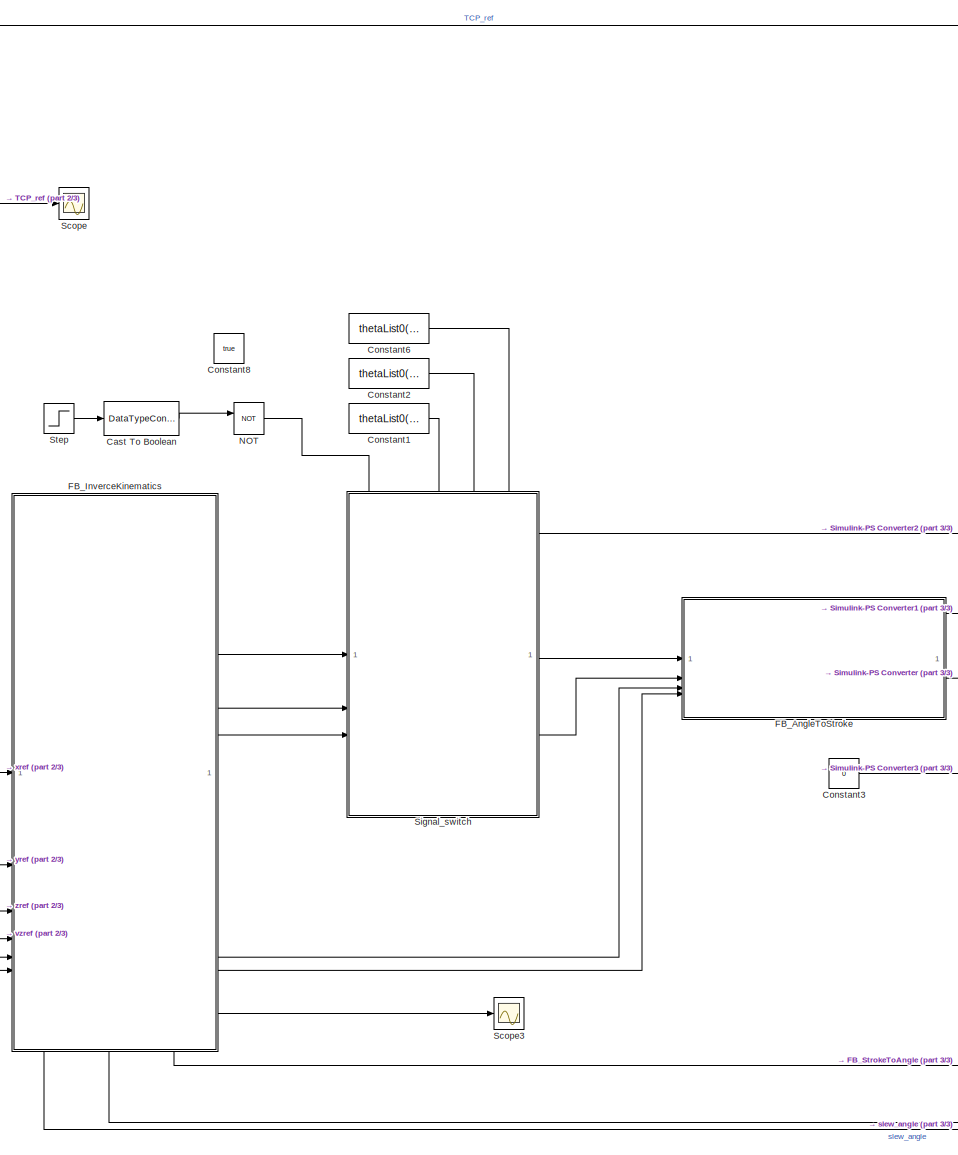
[diagram: root canvas - part 1/3, center side, full height]
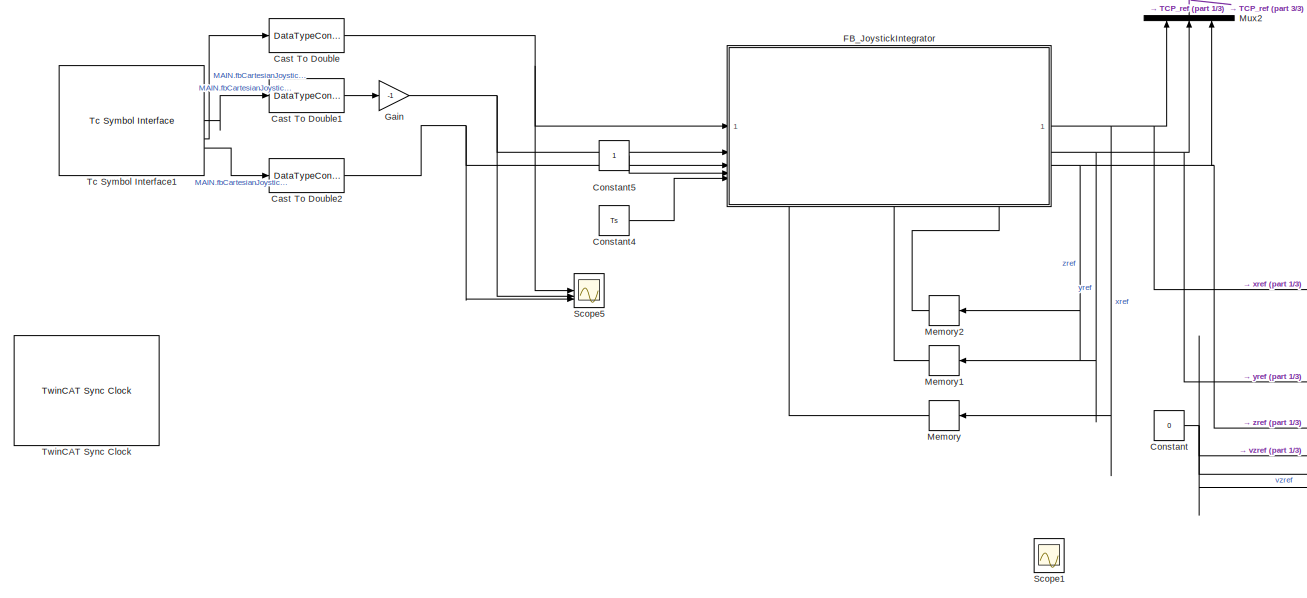
[diagram: root canvas - part 2/3, bottom left region]
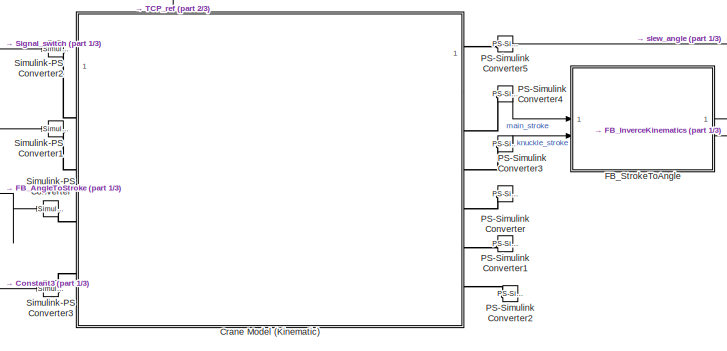
[diagram: root canvas - part 3/3, middle right region]
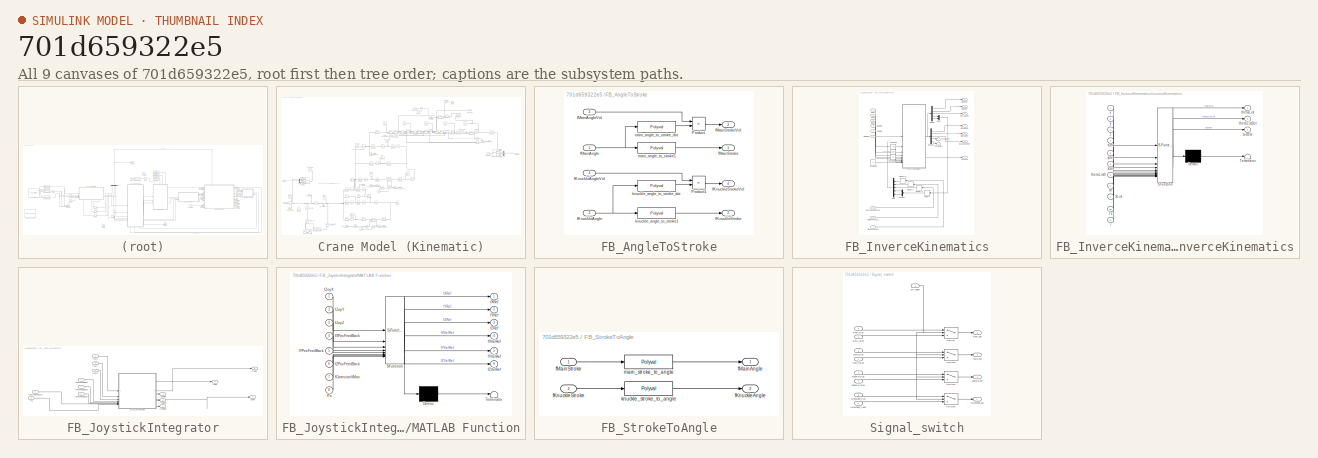
[diagram: thumbnail index - all 9 canvases of the model, root first then tree order]
MODEL slx_701d659322e5
KIND model
CONFIG AbsTol = auto
CONFIG EnableMultiTasking = off
CONFIG FixedStep = Ts
CONFIG MaxStep = 0.005
CONFIG MinStep = auto
CONFIG RelTol = 1e-3
CONFIG SampleTimeConstraint = Unconstrained
CONFIG SolverName = FixedStepAuto
CONFIG StartTime = 0.0
CONFIG StopTime = inf
BLOCK [DataTypeConversion] Cast To Boolean
  OutDataTypeStr = boolean
  RndMeth = Floor
  SaturateOnIntegerOverflow = off
BLOCK [DataTypeConversion] Cast To Double
  OutDataTypeStr = double
  RndMeth = Floor
  SaturateOnIntegerOverflow = off
BLOCK [DataTypeConversion] Cast To Double1
  OutDataTypeStr = double
  RndMeth = Floor
  SaturateOnIntegerOverflow = off
BLOCK [DataTypeConversion] Cast To Double2
  OutDataTypeStr = double
  RndMeth = Floor
  SaturateOnIntegerOverflow = off
BLOCK [Constant] Constant
  Value = 0
BLOCK [Constant] Constant1
  Value = thetaList0(3)
BLOCK [Constant] Constant2
  Value = thetaList0(2)
BLOCK [Constant] Constant3
  Value = 0
BLOCK [Constant] Constant4
  Value = Ts
BLOCK [Constant] Constant5
BLOCK [Constant] Constant6
  Value = thetaList0(1)
BLOCK [Constant] Constant8
  Value = true
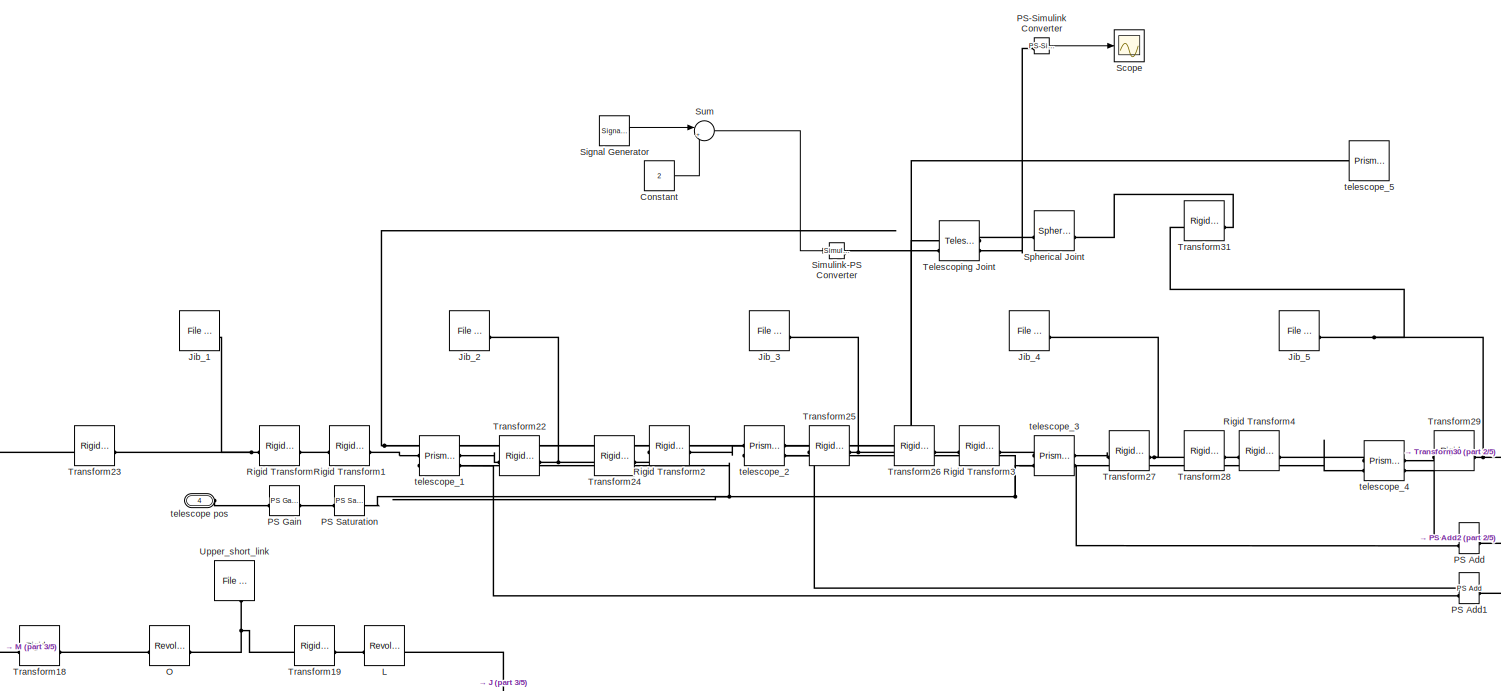
[diagram: Crane Model (Kinematic) - part 1/5, top center region]
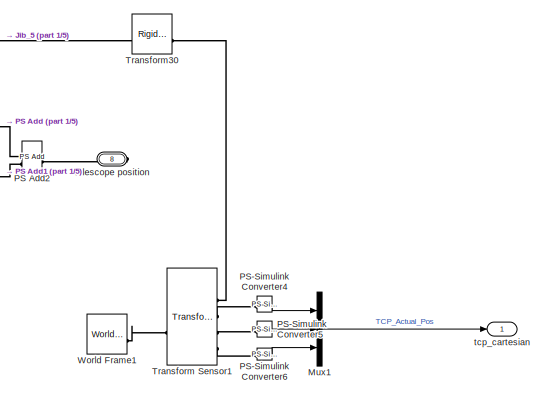
[diagram: Crane Model (Kinematic) - part 2/5, middle right region]
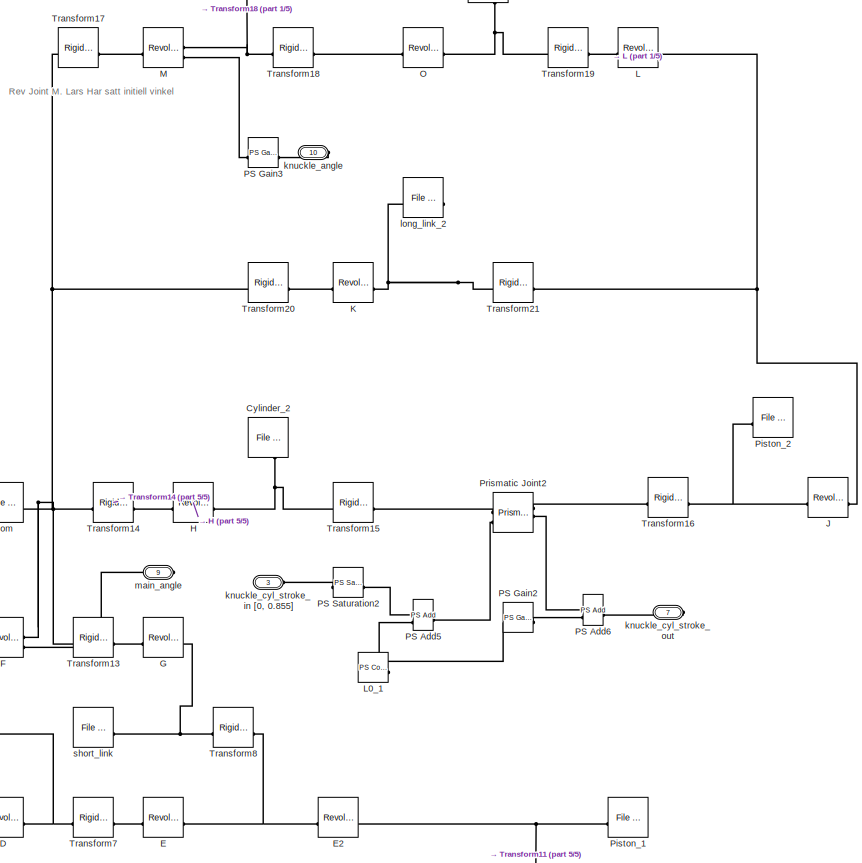
[diagram: Crane Model (Kinematic) - part 3/5, central region]
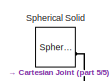
[diagram: Crane Model (Kinematic) - part 4/5, middle left region]
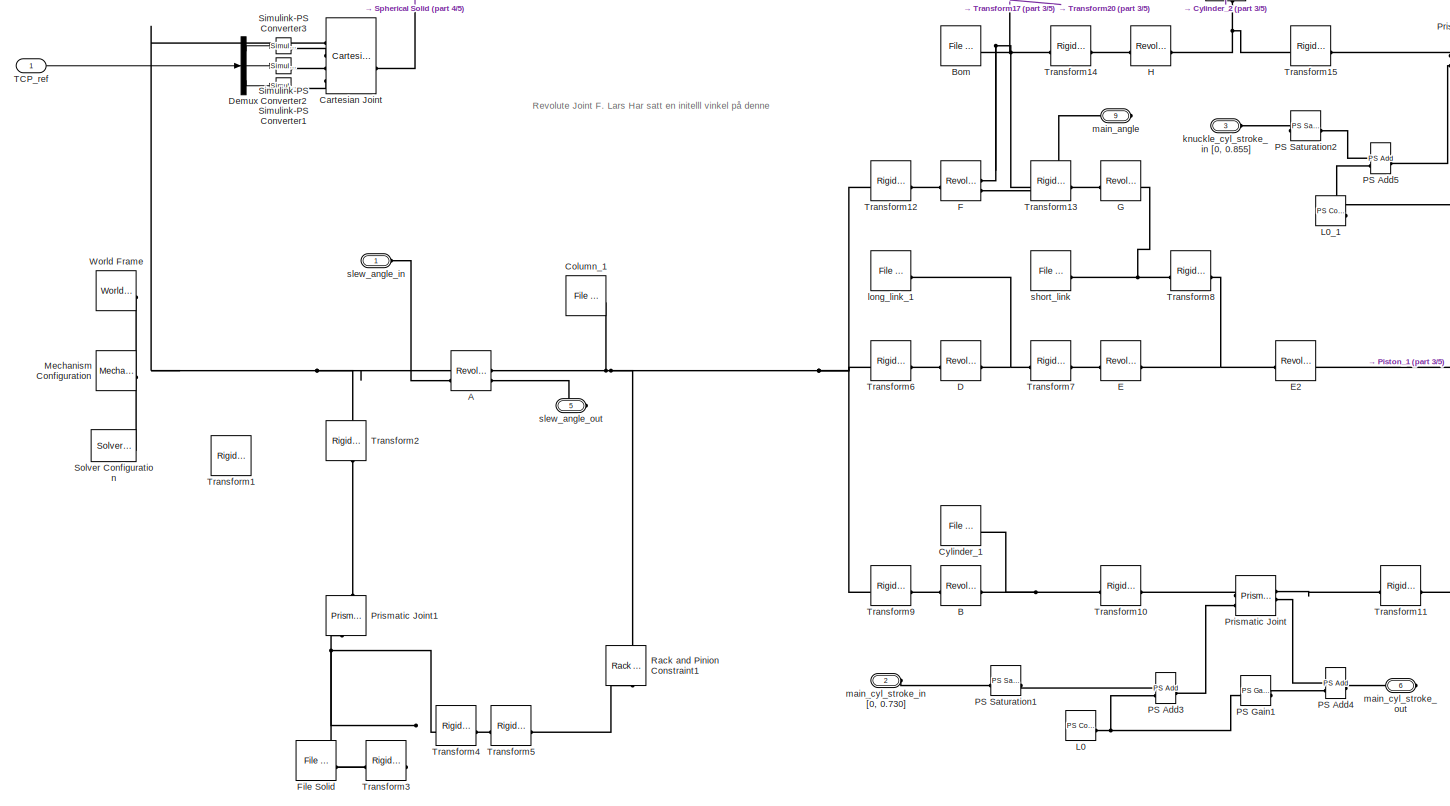
[diagram: Crane Model (Kinematic) - part 5/5, bottom left region]
BLOCK [SubSystem] Crane Model (Kinematic)
  NameLocation = top
  PortSchema = {"entries":[{"content":{"sides":[{"content":{"connectorIds":["LConn1","LConn2","LConn3","LConn4"]},"type":"ConnectorPlacement.EquallySpacedRectSide","uuid":"4a665765-5f1a-426d-91c2-f3af20fe3627"},{"content":{"connectorIds":["RConn1","RConn2","RConn3","RConn4","RConn5","RConn6"],"side":"RIGHT"},"type":"ConnectorPlacement.EquallySpacedRectSide","uuid":"cf43645c-9a50-4bc9-b355-f38e72b1430d"},{"conten...<+329ch>
BLOCK [Reference] Crane Model (Kinematic)/A  REF=sm_lib/Joints/Revolute Joint
  SourceBlock = sm_lib/Joints/Revolute Joint
  SourceType = Revolute Joint
BLOCK [Reference] Crane Model (Kinematic)/B  REF=sm_lib/Joints/Revolute Joint
  SourceBlock = sm_lib/Joints/Revolute Joint
  SourceType = Revolute Joint
BLOCK [Reference] Crane Model (Kinematic)/Bom  REF=sm_lib/Body Elements/File Solid
  SourceBlock = sm_lib/Body Elements/File Solid
  SourceType = File Solid
BLOCK [Reference] Crane Model (Kinematic)/Cartesian Joint  REF=sm_lib/Joints/Cartesian
Joint
  SourceBlock = sm_lib/Joints/Cartesian\nJoint
  SourceType = Cartesian\nJoint
BLOCK [Reference] Crane Model (Kinematic)/Column_1  REF=sm_lib/Body Elements/File Solid
  SourceBlock = sm_lib/Body Elements/File Solid
  SourceType = File Solid
BLOCK [Constant] Crane Model (Kinematic)/Constant
  Commented = on
  Value = 2
BLOCK [Reference] Crane Model (Kinematic)/Cylinder_1  REF=sm_lib/Body Elements/File Solid
  SourceBlock = sm_lib/Body Elements/File Solid
  SourceType = File Solid
BLOCK [Reference] Crane Model (Kinematic)/Cylinder_2  REF=sm_lib/Body Elements/File Solid
  NameLocation = left
  SourceBlock = sm_lib/Body Elements/File Solid
  SourceType = File Solid
BLOCK [Reference] Crane Model (Kinematic)/D  REF=sm_lib/Joints/Revolute Joint
  SourceBlock = sm_lib/Joints/Revolute Joint
  SourceType = Revolute Joint
BLOCK [Demux] Crane Model (Kinematic)/Demux
  Outputs = 3
BLOCK [Reference] Crane Model (Kinematic)/E  REF=sm_lib/Joints/Revolute Joint
  SourceBlock = sm_lib/Joints/Revolute Joint
  SourceType = Revolute Joint
BLOCK [Reference] Crane Model (Kinematic)/E2  REF=sm_lib/Joints/Revolute Joint
  SourceBlock = sm_lib/Joints/Revolute Joint
  SourceType = Revolute Joint
BLOCK [Reference] Crane Model (Kinematic)/F  REF=sm_lib/Joints/Revolute Joint
  SourceBlock = sm_lib/Joints/Revolute Joint
  SourceType = Revolute Joint
BLOCK [Reference] Crane Model (Kinematic)/File Solid  REF=sm_lib/Body Elements/File Solid
  SourceBlock = sm_lib/Body Elements/File Solid
  SourceType = File Solid
BLOCK [Reference] Crane Model (Kinematic)/G  REF=sm_lib/Joints/Revolute Joint
  SourceBlock = sm_lib/Joints/Revolute Joint
  SourceType = Revolute Joint
BLOCK [Reference] Crane Model (Kinematic)/H  REF=sm_lib/Joints/Revolute Joint
  SourceBlock = sm_lib/Joints/Revolute Joint
  SourceType = Revolute Joint
BLOCK [Reference] Crane Model (Kinematic)/J  REF=sm_lib/Joints/Revolute Joint
  SourceBlock = sm_lib/Joints/Revolute Joint
  SourceType = Revolute Joint
BLOCK [Reference] Crane Model (Kinematic)/Jib_1  REF=sm_lib/Body Elements/File Solid
  SourceBlock = sm_lib/Body Elements/File Solid
  SourceType = File Solid
BLOCK [Reference] Crane Model (Kinematic)/Jib_2  REF=sm_lib/Body Elements/File Solid
  SourceBlock = sm_lib/Body Elements/File Solid
  SourceType = File Solid
BLOCK [Reference] Crane Model (Kinematic)/Jib_3  REF=sm_lib/Body Elements/File Solid
  SourceBlock = sm_lib/Body Elements/File Solid
  SourceType = File Solid
BLOCK [Reference] Crane Model (Kinematic)/Jib_4  REF=sm_lib/Body Elements/File Solid
  SourceBlock = sm_lib/Body Elements/File Solid
  SourceType = File Solid
BLOCK [Reference] Crane Model (Kinematic)/Jib_5  REF=sm_lib/Body Elements/File Solid
  SourceBlock = sm_lib/Body Elements/File Solid
  SourceType = File Solid
BLOCK [Reference] Crane Model (Kinematic)/K  REF=sm_lib/Joints/Revolute Joint
  SourceBlock = sm_lib/Joints/Revolute Joint
  SourceType = Revolute Joint
BLOCK [Reference] Crane Model (Kinematic)/L  REF=sm_lib/Joints/Revolute Joint
  SourceBlock = sm_lib/Joints/Revolute Joint
  SourceType = Revolute Joint
BLOCK [Reference] Crane Model (Kinematic)/L0  REF=fl_lib/Physical Signals/Sources/PS Constant
  SourceBlock = fl_lib/Physical Signals/Sources/PS Constant
  SourceType = PS Constant
BLOCK [Reference] Crane Model (Kinematic)/L0_1  REF=fl_lib/Physical Signals/Sources/PS Constant
  SourceBlock = fl_lib/Physical Signals/Sources/PS Constant
  SourceType = PS Constant
BLOCK [Reference] Crane Model (Kinematic)/M  REF=sm_lib/Joints/Revolute Joint
  SourceBlock = sm_lib/Joints/Revolute Joint
  SourceType = Revolute Joint
BLOCK [Reference] Crane Model (Kinematic)/Mechanism Configuration  REF=sm_lib/Utilities/Mechanism
Configuration
  SourceBlock = sm_lib/Utilities/Mechanism\nConfiguration
  SourceType = Mechanism\nConfiguration
BLOCK [Mux] Crane Model (Kinematic)/Mux1
  DisplayOption = bar
  Inputs = 3
BLOCK [Reference] Crane Model (Kinematic)/O  REF=sm_lib/Joints/Revolute Joint
  SourceBlock = sm_lib/Joints/Revolute Joint
  SourceType = Revolute Joint
BLOCK [Reference] Crane Model (Kinematic)/PS Add  REF=fl_lib/Physical Signals/Functions/PS Add
  SourceBlock = fl_lib/Physical Signals/Functions/PS Add
  SourceType = PS Add
BLOCK [Reference] Crane Model (Kinematic)/PS Add1  REF=fl_lib/Physical Signals/Functions/PS Add
  SourceBlock = fl_lib/Physical Signals/Functions/PS Add
  SourceType = PS Add
BLOCK [Reference] Crane Model (Kinematic)/PS Add2  REF=fl_lib/Physical Signals/Functions/PS Add
  SourceBlock = fl_lib/Physical Signals/Functions/PS Add
  SourceType = PS Add
BLOCK [Reference] Crane Model (Kinematic)/PS Add3  REF=fl_lib/Physical Signals/Functions/PS Add
  SourceBlock = fl_lib/Physical Signals/Functions/PS Add
  SourceType = PS Add
BLOCK [Reference] Crane Model (Kinematic)/PS Add4  REF=fl_lib/Physical Signals/Functions/PS Add
  SourceBlock = fl_lib/Physical Signals/Functions/PS Add
  SourceType = PS Add
BLOCK [Reference] Crane Model (Kinematic)/PS Add5  REF=fl_lib/Physical Signals/Functions/PS Add
  SourceBlock = fl_lib/Physical Signals/Functions/PS Add
  SourceType = PS Add
BLOCK [Reference] Crane Model (Kinematic)/PS Add6  REF=fl_lib/Physical Signals/Functions/PS Add
  SourceBlock = fl_lib/Physical Signals/Functions/PS Add
  SourceType = PS Add
BLOCK [Reference] Crane Model (Kinematic)/PS Gain  REF=fl_lib/Physical Signals/Functions/PS Gain
  SourceBlock = fl_lib/Physical Signals/Functions/PS Gain
  SourceType = PS Gain
BLOCK [Reference] Crane Model (Kinematic)/PS Gain1  REF=fl_lib/Physical Signals/Functions/PS Gain
  SourceBlock = fl_lib/Physical Signals/Functions/PS Gain
  SourceType = PS Gain
BLOCK [Reference] Crane Model (Kinematic)/PS Gain2  REF=fl_lib/Physical Signals/Functions/PS Gain
  SourceBlock = fl_lib/Physical Signals/Functions/PS Gain
  SourceType = PS Gain
BLOCK [Reference] Crane Model (Kinematic)/PS Gain3  REF=fl_lib/Physical Signals/Functions/PS Gain
  SourceBlock = fl_lib/Physical Signals/Functions/PS Gain
  SourceType = PS Gain
BLOCK [Reference] Crane Model (Kinematic)/PS Saturation  REF=fl_lib/Physical Signals/Nonlinear Operators/PS Saturation
  SourceBlock = fl_lib/Physical Signals/Nonlinear Operators/PS Saturation
  SourceType = PS Saturation
BLOCK [Reference] Crane Model (Kinematic)/PS Saturation1  REF=fl_lib/Physical Signals/Nonlinear Operators/PS Saturation
  SourceBlock = fl_lib/Physical Signals/Nonlinear Operators/PS Saturation
  SourceType = PS Saturation
BLOCK [Reference] Crane Model (Kinematic)/PS Saturation2  REF=fl_lib/Physical Signals/Nonlinear Operators/PS Saturation
  SourceBlock = fl_lib/Physical Signals/Nonlinear Operators/PS Saturation
  SourceType = PS Saturation
BLOCK [Reference] Crane Model (Kinematic)/PS-Simulink Converter  REF=nesl_utility/PS-Simulink
Converter
  Commented = on
  SourceBlock = nesl_utility/PS-Simulink\nConverter
  SourceType = PS-Simulink\nConverter
BLOCK [Reference] Crane Model (Kinematic)/PS-Simulink Converter4  REF=nesl_utility/PS-Simulink
Converter
  SourceBlock = nesl_utility/PS-Simulink\nConverter
  SourceType = PS-Simulink\nConverter
BLOCK [Reference] Crane Model (Kinematic)/PS-Simulink Converter5  REF=nesl_utility/PS-Simulink
Converter
  SourceBlock = nesl_utility/PS-Simulink\nConverter
  SourceType = PS-Simulink\nConverter
BLOCK [Reference] Crane Model (Kinematic)/PS-Simulink Converter6  REF=nesl_utility/PS-Simulink
Converter
  SourceBlock = nesl_utility/PS-Simulink\nConverter
  SourceType = PS-Simulink\nConverter
BLOCK [Reference] Crane Model (Kinematic)/Piston_1  REF=sm_lib/Body Elements/File Solid
  SourceBlock = sm_lib/Body Elements/File Solid
  SourceType = File Solid
BLOCK [Reference] Crane Model (Kinematic)/Piston_2  REF=sm_lib/Body Elements/File Solid
  SourceBlock = sm_lib/Body Elements/File Solid
  SourceType = File Solid
BLOCK [Reference] Crane Model (Kinematic)/Prismatic Joint  REF=sm_lib/Joints/Prismatic
Joint
  SourceBlock = sm_lib/Joints/Prismatic\nJoint
  SourceType = Prismatic\nJoint
BLOCK [Reference] Crane Model (Kinematic)/Prismatic Joint1  REF=sm_lib/Joints/Prismatic
Joint
  NameLocation = left
  SourceBlock = sm_lib/Joints/Prismatic\nJoint
  SourceType = Prismatic\nJoint
BLOCK [Reference] Crane Model (Kinematic)/Prismatic Joint2  REF=sm_lib/Joints/Prismatic
Joint
  SourceBlock = sm_lib/Joints/Prismatic\nJoint
  SourceType = Prismatic\nJoint
BLOCK [Reference] Crane Model (Kinematic)/Rack and Pinion Constraint1  REF=sm_lib/Gears and
Couplings/Gears/Rack and Pinion
Constraint
  NameLocation = left
  SourceBlock = sm_lib/Gears and\nCouplings/Gears/Rack and Pinion\nConstraint
  SourceType = Rack and Pinion\nConstraint
BLOCK [Reference] Crane Model (Kinematic)/Rigid Transform  REF=sm_lib/Frames and
Transforms/Rigid
Transform
  SourceBlock = sm_lib/Frames and\nTransforms/Rigid\nTransform
  SourceType = Rigid\nTransform
BLOCK [Reference] Crane Model (Kinematic)/Rigid Transform1  REF=sm_lib/Frames and
Transforms/Rigid
Transform
  SourceBlock = sm_lib/Frames and\nTransforms/Rigid\nTransform
  SourceType = Rigid\nTransform
BLOCK [Reference] Crane Model (Kinematic)/Rigid Transform2  REF=sm_lib/Frames and
Transforms/Rigid
Transform
  SourceBlock = sm_lib/Frames and\nTransforms/Rigid\nTransform
  SourceType = Rigid\nTransform
BLOCK [Reference] Crane Model (Kinematic)/Rigid Transform3  REF=sm_lib/Frames and
Transforms/Rigid
Transform
  SourceBlock = sm_lib/Frames and\nTransforms/Rigid\nTransform
  SourceType = Rigid\nTransform
BLOCK [Reference] Crane Model (Kinematic)/Rigid Transform4  REF=sm_lib/Frames and
Transforms/Rigid
Transform
  SourceBlock = sm_lib/Frames and\nTransforms/Rigid\nTransform
  SourceType = Rigid\nTransform
BLOCK [Scope] Crane Model (Kinematic)/Scope
  Commented = on
  Floating = off
  NumInputPorts = 1
  ScopeSpecificationString = Simulink.scopes.TimeScopeBlockCfg('CurrentConfiguration', extmgr.ConfigurationSet(extmgr.Configuration('Core','General UI',true),extmgr.Configuration('Core','Source UI',true),extmgr.Configuration('Sources','WiredSimulink',true),extmgr.Configuration('Visuals','Time Domain',true,'SerializedDisplays',{struct('MinYLimReal','1.00000','MaxYLimReal','3.00000','YLabelReal','','MinYLimMag','1.00000','MaxYL...<+1569ch>
BLOCK [SignalGenerator] Crane Model (Kinematic)/Signal Generator
  Commented = on
  Frequency = 0.5
BLOCK [Reference] Crane Model (Kinematic)/Simulink-PS Converter  REF=nesl_utility/Simulink-PS
Converter
  Commented = on
  SourceBlock = nesl_utility/Simulink-PS\nConverter
  SourceType = Simulink-PS\nConverter
BLOCK [Reference] Crane Model (Kinematic)/Simulink-PS Converter1  REF=nesl_utility/Simulink-PS
Converter
  SourceBlock = nesl_utility/Simulink-PS\nConverter
  SourceType = Simulink-PS\nConverter
BLOCK [Reference] Crane Model (Kinematic)/Simulink-PS Converter2  REF=nesl_utility/Simulink-PS
Converter
  SourceBlock = nesl_utility/Simulink-PS\nConverter
  SourceType = Simulink-PS\nConverter
BLOCK [Reference] Crane Model (Kinematic)/Simulink-PS Converter3  REF=nesl_utility/Simulink-PS
Converter
  SourceBlock = nesl_utility/Simulink-PS\nConverter
  SourceType = Simulink-PS\nConverter
BLOCK [Reference] Crane Model (Kinematic)/Solver Configuration  REF=nesl_utility/Solver
Configuration
  SourceBlock = nesl_utility/Solver\nConfiguration
  SourceType = Solver\nConfiguration
BLOCK [Reference] Crane Model (Kinematic)/Spherical Joint  REF=sm_lib/Joints/Spherical
Joint
  Commented = on
  SourceBlock = sm_lib/Joints/Spherical\nJoint
  SourceType = Spherical\nJoint
BLOCK [Reference] Crane Model (Kinematic)/Spherical Solid  REF=sm_lib/Body Elements/Spherical Solid
  SourceBlock = sm_lib/Body Elements/Spherical Solid
  SourceType = Spherical Solid
BLOCK [Sum] Crane Model (Kinematic)/Sum
  Commented = on
  Inputs = |++
BLOCK [Inport] Crane Model (Kinematic)/TCP_ref
BLOCK [Reference] Crane Model (Kinematic)/Telescoping Joint  REF=sm_lib/Joints/Telescoping
Joint
  Commented = on
  SourceBlock = sm_lib/Joints/Telescoping\nJoint
  SourceType = Telescoping\nJoint
BLOCK [Reference] Crane Model (Kinematic)/Transform Sensor1  REF=sm_lib/Frames and
Transforms/Transform
Sensor
  SourceBlock = sm_lib/Frames and\nTransforms/Transform\nSensor
  SourceType = Transform\nSensor
BLOCK [Reference] Crane Model (Kinematic)/Transform1  REF=sm_lib/Frames and
Transforms/Rigid
Transform
  Commented = on
  SourceBlock = sm_lib/Frames and\nTransforms/Rigid\nTransform
  SourceType = Rigid\nTransform
BLOCK [Reference] Crane Model (Kinematic)/Transform10  REF=sm_lib/Frames and
Transforms/Rigid
Transform
  SourceBlock = sm_lib/Frames and\nTransforms/Rigid\nTransform
  SourceType = Rigid\nTransform
BLOCK [Reference] Crane Model (Kinematic)/Transform11  REF=sm_lib/Frames and
Transforms/Rigid
Transform
  SourceBlock = sm_lib/Frames and\nTransforms/Rigid\nTransform
  SourceType = Rigid\nTransform
BLOCK [Reference] Crane Model (Kinematic)/Transform12  REF=sm_lib/Frames and
Transforms/Rigid
Transform
  SourceBlock = sm_lib/Frames and\nTransforms/Rigid\nTransform
  SourceType = Rigid\nTransform
BLOCK [Reference] Crane Model (Kinematic)/Transform13  REF=sm_lib/Frames and
Transforms/Rigid
Transform
  SourceBlock = sm_lib/Frames and\nTransforms/Rigid\nTransform
  SourceType = Rigid\nTransform
BLOCK [Reference] Crane Model (Kinematic)/Transform14  REF=sm_lib/Frames and
Transforms/Rigid
Transform
  SourceBlock = sm_lib/Frames and\nTransforms/Rigid\nTransform
  SourceType = Rigid\nTransform
BLOCK [Reference] Crane Model (Kinematic)/Transform15  REF=sm_lib/Frames and
Transforms/Rigid
Transform
  SourceBlock = sm_lib/Frames and\nTransforms/Rigid\nTransform
  SourceType = Rigid\nTransform
BLOCK [Reference] Crane Model (Kinematic)/Transform16  REF=sm_lib/Frames and
Transforms/Rigid
Transform
  NameLocation = top
  SourceBlock = sm_lib/Frames and\nTransforms/Rigid\nTransform
  SourceType = Rigid\nTransform
BLOCK [Reference] Crane Model (Kinematic)/Transform17  REF=sm_lib/Frames and
Transforms/Rigid
Transform
  SourceBlock = sm_lib/Frames and\nTransforms/Rigid\nTransform
  SourceType = Rigid\nTransform
BLOCK [Reference] Crane Model (Kinematic)/Transform18  REF=sm_lib/Frames and
Transforms/Rigid
Transform
  SourceBlock = sm_lib/Frames and\nTransforms/Rigid\nTransform
  SourceType = Rigid\nTransform
BLOCK [Reference] Crane Model (Kinematic)/Transform19  REF=sm_lib/Frames and
Transforms/Rigid
Transform
  SourceBlock = sm_lib/Frames and\nTransforms/Rigid\nTransform
  SourceType = Rigid\nTransform
BLOCK [Reference] Crane Model (Kinematic)/Transform2  REF=sm_lib/Frames and
Transforms/Rigid
Transform
  NameLocation = left
  SourceBlock = sm_lib/Frames and\nTransforms/Rigid\nTransform
  SourceType = Rigid\nTransform
BLOCK [Reference] Crane Model (Kinematic)/Transform20  REF=sm_lib/Frames and
Transforms/Rigid
Transform
  SourceBlock = sm_lib/Frames and\nTransforms/Rigid\nTransform
  SourceType = Rigid\nTransform
BLOCK [Reference] Crane Model (Kinematic)/Transform21  REF=sm_lib/Frames and
Transforms/Rigid
Transform
  SourceBlock = sm_lib/Frames and\nTransforms/Rigid\nTransform
  SourceType = Rigid\nTransform
BLOCK [Reference] Crane Model (Kinematic)/Transform22  REF=sm_lib/Frames and
Transforms/Rigid
Transform
  SourceBlock = sm_lib/Frames and\nTransforms/Rigid\nTransform
  SourceType = Rigid\nTransform
BLOCK [Reference] Crane Model (Kinematic)/Transform23  REF=sm_lib/Frames and
Transforms/Rigid
Transform
  SourceBlock = sm_lib/Frames and\nTransforms/Rigid\nTransform
  SourceType = Rigid\nTransform
BLOCK [Reference] Crane Model (Kinematic)/Transform24  REF=sm_lib/Frames and
Transforms/Rigid
Transform
  SourceBlock = sm_lib/Frames and\nTransforms/Rigid\nTransform
  SourceType = Rigid\nTransform
BLOCK [Reference] Crane Model (Kinematic)/Transform25  REF=sm_lib/Frames and
Transforms/Rigid
Transform
  SourceBlock = sm_lib/Frames and\nTransforms/Rigid\nTransform
  SourceType = Rigid\nTransform
BLOCK [Reference] Crane Model (Kinematic)/Transform26  REF=sm_lib/Frames and
Transforms/Rigid
Transform
  SourceBlock = sm_lib/Frames and\nTransforms/Rigid\nTransform
  SourceType = Rigid\nTransform
BLOCK [Reference] Crane Model (Kinematic)/Transform27  REF=sm_lib/Frames and
Transforms/Rigid
Transform
  SourceBlock = sm_lib/Frames and\nTransforms/Rigid\nTransform
  SourceType = Rigid\nTransform
BLOCK [Reference] Crane Model (Kinematic)/Transform28  REF=sm_lib/Frames and
Transforms/Rigid
Transform
  SourceBlock = sm_lib/Frames and\nTransforms/Rigid\nTransform
  SourceType = Rigid\nTransform
BLOCK [Reference] Crane Model (Kinematic)/Transform29  REF=sm_lib/Frames and
Transforms/Rigid
Transform
  SourceBlock = sm_lib/Frames and\nTransforms/Rigid\nTransform
  SourceType = Rigid\nTransform
BLOCK [Reference] Crane Model (Kinematic)/Transform3  REF=sm_lib/Frames and
Transforms/Rigid
Transform
  SourceBlock = sm_lib/Frames and\nTransforms/Rigid\nTransform
  SourceType = Rigid\nTransform
BLOCK [Reference] Crane Model (Kinematic)/Transform30  REF=sm_lib/Frames and
Transforms/Rigid
Transform
  SourceBlock = sm_lib/Frames and\nTransforms/Rigid\nTransform
  SourceType = Rigid\nTransform
BLOCK [Reference] Crane Model (Kinematic)/Transform31  REF=sm_lib/Frames and
Transforms/Rigid
Transform
  Commented = on
  SourceBlock = sm_lib/Frames and\nTransforms/Rigid\nTransform
  SourceType = Rigid\nTransform
BLOCK [Reference] Crane Model (Kinematic)/Transform4  REF=sm_lib/Frames and
Transforms/Rigid
Transform
  SourceBlock = sm_lib/Frames and\nTransforms/Rigid\nTransform
  SourceType = Rigid\nTransform
BLOCK [Reference] Crane Model (Kinematic)/Transform5  REF=sm_lib/Frames and
Transforms/Rigid
Transform
  SourceBlock = sm_lib/Frames and\nTransforms/Rigid\nTransform
  SourceType = Rigid\nTransform
BLOCK [Reference] Crane Model (Kinematic)/Transform6  REF=sm_lib/Frames and
Transforms/Rigid
Transform
  SourceBlock = sm_lib/Frames and\nTransforms/Rigid\nTransform
  SourceType = Rigid\nTransform
BLOCK [Reference] Crane Model (Kinematic)/Transform7  REF=sm_lib/Frames and
Transforms/Rigid
Transform
  SourceBlock = sm_lib/Frames and\nTransforms/Rigid\nTransform
  SourceType = Rigid\nTransform
BLOCK [Reference] Crane Model (Kinematic)/Transform8  REF=sm_lib/Frames and
Transforms/Rigid
Transform
  SourceBlock = sm_lib/Frames and\nTransforms/Rigid\nTransform
  SourceType = Rigid\nTransform
BLOCK [Reference] Crane Model (Kinematic)/Transform9  REF=sm_lib/Frames and
Transforms/Rigid
Transform
  SourceBlock = sm_lib/Frames and\nTransforms/Rigid\nTransform
  SourceType = Rigid\nTransform
BLOCK [Reference] Crane Model (Kinematic)/Upper_short_link  REF=sm_lib/Body Elements/File Solid
  NameLocation = left
  SourceBlock = sm_lib/Body Elements/File Solid
  SourceType = File Solid
BLOCK [Reference] Crane Model (Kinematic)/World Frame  REF=sm_lib/Frames and
Transforms/World Frame
  SourceBlock = sm_lib/Frames and\nTransforms/World Frame
  SourceType = World Frame
BLOCK [Reference] Crane Model (Kinematic)/World Frame1  REF=sm_lib/Frames and
Transforms/World Frame
  SourceBlock = sm_lib/Frames and\nTransforms/World Frame
  SourceType = World Frame
BLOCK [PMIOPort] Crane Model (Kinematic)/knuckle_angle
  Port = 10
  Side = Right
BLOCK [PMIOPort] Crane Model (Kinematic)/knuckle_cyl_stroke_in [0, 0.855]
  Port = 3
  Side = Left
BLOCK [PMIOPort] Crane Model (Kinematic)/knuckle_cyl_stroke_out
  Port = 7
  Side = Right
BLOCK [Reference] Crane Model (Kinematic)/long_link_1  REF=sm_lib/Body Elements/File Solid
  SourceBlock = sm_lib/Body Elements/File Solid
  SourceType = File Solid
BLOCK [Reference] Crane Model (Kinematic)/long_link_2  REF=sm_lib/Body Elements/File Solid
  SourceBlock = sm_lib/Body Elements/File Solid
  SourceType = File Solid
BLOCK [PMIOPort] Crane Model (Kinematic)/main_angle
  Port = 9
  Side = Right
BLOCK [PMIOPort] Crane Model (Kinematic)/main_cyl_stroke_in [0, 0.730]
  Port = 2
  Side = Left
BLOCK [PMIOPort] Crane Model (Kinematic)/main_cyl_stroke_out
  Port = 6
  Side = Right
BLOCK [Reference] Crane Model (Kinematic)/short_link  REF=sm_lib/Body Elements/File Solid
  SourceBlock = sm_lib/Body Elements/File Solid
  SourceType = File Solid
BLOCK [PMIOPort] Crane Model (Kinematic)/slew_angle_in
  Side = Left
BLOCK [PMIOPort] Crane Model (Kinematic)/slew_angle_out
  Port = 5
  Side = Right
BLOCK [Outport] Crane Model (Kinematic)/tcp_cartesian
BLOCK [PMIOPort] Crane Model (Kinematic)/telescope pos
  Port = 4
  Side = Left
BLOCK [PMIOPort] Crane Model (Kinematic)/telescope position
  Port = 8
  Side = Right
BLOCK [Reference] Crane Model (Kinematic)/telescope_1  REF=sm_lib/Joints/Prismatic
Joint
  SourceBlock = sm_lib/Joints/Prismatic\nJoint
  SourceType = Prismatic\nJoint
BLOCK [Reference] Crane Model (Kinematic)/telescope_2  REF=sm_lib/Joints/Prismatic
Joint
  SourceBlock = sm_lib/Joints/Prismatic\nJoint
  SourceType = Prismatic\nJoint
BLOCK [Reference] Crane Model (Kinematic)/telescope_3  REF=sm_lib/Joints/Prismatic
Joint
  SourceBlock = sm_lib/Joints/Prismatic\nJoint
  SourceType = Prismatic\nJoint
BLOCK [Reference] Crane Model (Kinematic)/telescope_4  REF=sm_lib/Joints/Prismatic
Joint
  SourceBlock = sm_lib/Joints/Prismatic\nJoint
  SourceType = Prismatic\nJoint
BLOCK [Reference] Crane Model (Kinematic)/telescope_5  REF=sm_lib/Joints/Prismatic
Joint
  Commented = on
  SourceBlock = sm_lib/Joints/Prismatic\nJoint
  SourceType = Prismatic\nJoint
BLOCK [SubSystem] FB_AngleToStroke
BLOCK [Product] FB_AngleToStroke/Product
BLOCK [Product] FB_AngleToStroke/Product1
BLOCK [Inport] FB_AngleToStroke/fKnuckleAngle
  Port = 2
BLOCK [Inport] FB_AngleToStroke/fKnuckleAngleVel
  Port = 4
BLOCK [Outport] FB_AngleToStroke/fKnuckleStroke
  Port = 2
BLOCK [Outport] FB_AngleToStroke/fKnuckleStrokeVel
  Port = 4
BLOCK [Inport] FB_AngleToStroke/fMainAngle
BLOCK [Inport] FB_AngleToStroke/fMainAngleVel
  Port = 3
BLOCK [Outport] FB_AngleToStroke/fMainStroke
BLOCK [Outport] FB_AngleToStroke/fMainStrokeVel
  Port = 3
BLOCK [Polyval] FB_AngleToStroke/knuckle_angle_to_stroke1
  Coefs = p_k_angle_to_stroke
BLOCK [Polyval] FB_AngleToStroke/knuckle_angle_to_stroke_dot
  Coefs = dp_k_angle_to_stroke
BLOCK [Polyval] FB_AngleToStroke/main_angle_to_stroke1
  Coefs = p_m_angle_to_stroke
BLOCK [Polyval] FB_AngleToStroke/main_angle_to_stroke_dot
  Coefs = dp_m_angle_to_stroke
BLOCK [SubSystem] FB_InverceKinematics
  NameLocation = top
  PortSchema = {"entries":[{"content":{"sides":[{"content":{"connectorIds":["In1","In2","In3","In4","In5","In6"]},"type":"ConnectorPlacement.EquallySpacedRectSide","uuid":"b7f3f39a-cc1b-4519-b948-004466b4d293"},{"content":{"connectorIds":["Out1","Out2","Out3","Out4","Out5","Out6","Out7"],"side":"RIGHT"},"type":"ConnectorPlacement.EquallySpacedRectSide","uuid":"cf571c2f-2cc7-4d1d-bbc1-a75d80a0878e"},{"content":{"...<+455ch>
BLOCK [Constant] FB_InverceKinematics/Constant
  Value = Ts
BLOCK [Constant] FB_InverceKinematics/Constant1
  Value = 5
BLOCK [Constant] FB_InverceKinematics/Constant4
  Value = M
BLOCK [Constant] FB_InverceKinematics/Constant5
  Value = SList
BLOCK [Demux] FB_InverceKinematics/Demux
  Outputs = 5
BLOCK [Demux] FB_InverceKinematics/Demux1
  NameLocation = top
  Outputs = 2
BLOCK [Demux] FB_InverceKinematics/Demux2
  Outputs = 5
BLOCK [Memory] FB_InverceKinematics/Memory
  InitialCondition = [thetaList0(4), thetaList0(5)]'
  NameLocation = top
BLOCK [Memory] FB_InverceKinematics/Memory1
  InitialCondition = thetaList0(3)
  NameLocation = top
BLOCK [Memory] FB_InverceKinematics/Memory2
  InitialCondition = thetaList0(2)
  NameLocation = top
BLOCK [Memory] FB_InverceKinematics/Memory3
  InitialCondition = thetaList0(1)
  NameLocation = top
BLOCK [Mux] FB_InverceKinematics/Mux
  DisplayOption = bar
  Inputs = 5
  NameLocation = top
BLOCK [Mux] FB_InverceKinematics/Mux1
  DisplayOption = bar
  Inputs = 2
BLOCK [Terminator] FB_InverceKinematics/Terminator
BLOCK [Terminator] FB_InverceKinematics/Terminator1
BLOCK [Inport] FB_InverceKinematics/fKnuckleFeedback
  Port = 9
BLOCK [Outport] FB_InverceKinematics/fKnuckleRef
  Port = 3
BLOCK [Outport] FB_InverceKinematics/fKnuckleVelRef
  Port = 6
BLOCK [Inport] FB_InverceKinematics/fMainFeedback
  Port = 8
BLOCK [Outport] FB_InverceKinematics/fMainRef
  Port = 2
BLOCK [Outport] FB_InverceKinematics/fMainVelRef
  Port = 5
BLOCK [Inport] FB_InverceKinematics/fSlewFeedback
  Port = 7
BLOCK [Outport] FB_InverceKinematics/fSlewRef
BLOCK [Outport] FB_InverceKinematics/fSlewVelRef
  Port = 4
BLOCK [Inport] FB_InverceKinematics/fXDotRef
  Port = 4
BLOCK [Inport] FB_InverceKinematics/fXRef
BLOCK [Inport] FB_InverceKinematics/fYDotRef
  Port = 5
BLOCK [Inport] FB_InverceKinematics/fYRef
  Port = 2
BLOCK [Inport] FB_InverceKinematics/fZDotRef
  Port = 6
BLOCK [Inport] FB_InverceKinematics/fZRef
  Port = 3
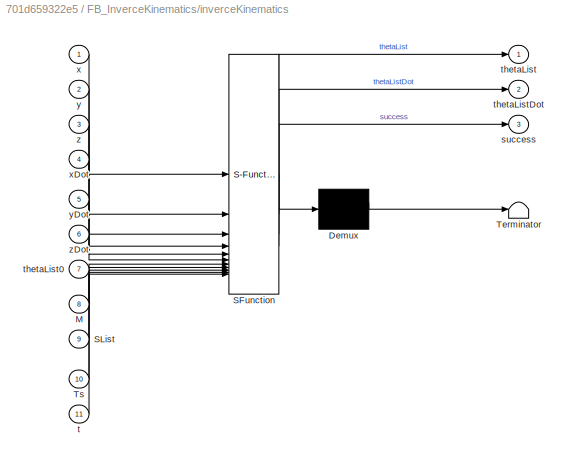
BLOCK [SubSystem] FB_InverceKinematics/inverceKinematics
  ErrorFcn = Stateflow.Translate.translate
  PermitHierarchicalResolution = ExplicitOnly
  SFBlockType = MATLAB Function
  TreatAsAtomicUnit = on
BLOCK [Demux] FB_InverceKinematics/inverceKinematics/ Demux 
  Outputs = 1
BLOCK [S-Function] FB_InverceKinematics/inverceKinematics/ SFunction 
  EnableBusSupport = on
  FunctionName = sf_sfun
  PortCounts = [11 4]
  SFcnIsStateOwnerBlock = off
  SFunctionDeploymentMode = off
  Tag = Stateflow S-Function 2
BLOCK [Terminator] FB_InverceKinematics/inverceKinematics/ Terminator 
BLOCK [Inport] FB_InverceKinematics/inverceKinematics/M
  Port = 8
BLOCK [Inport] FB_InverceKinematics/inverceKinematics/SList
  Port = 9
BLOCK [Inport] FB_InverceKinematics/inverceKinematics/Ts
  Port = 10
BLOCK [Outport] FB_InverceKinematics/inverceKinematics/success
  Port = 3
BLOCK [Inport] FB_InverceKinematics/inverceKinematics/t
  Port = 11
BLOCK [Outport] FB_InverceKinematics/inverceKinematics/thetaList
BLOCK [Inport] FB_InverceKinematics/inverceKinematics/thetaList0
  Port = 7
BLOCK [Outport] FB_InverceKinematics/inverceKinematics/thetaListDot
  Port = 2
BLOCK [Inport] FB_InverceKinematics/inverceKinematics/x
BLOCK [Inport] FB_InverceKinematics/inverceKinematics/xDot
  Port = 4
BLOCK [Inport] FB_InverceKinematics/inverceKinematics/y
  Port = 2
BLOCK [Inport] FB_InverceKinematics/inverceKinematics/yDot
  Port = 5
BLOCK [Inport] FB_InverceKinematics/inverceKinematics/z
  Port = 3
BLOCK [Inport] FB_InverceKinematics/inverceKinematics/zDot
  Port = 6
BLOCK [Outport] FB_InverceKinematics/success
  Port = 7
BLOCK [SubSystem] FB_JoystickIntegrator
  NameLocation = top
  PortSchema = {"entries":[{"content":{"sides":[{"content":{"connectorIds":["In1","In2","In3","In4","In5"]},"type":"ConnectorPlacement.EquallySpacedRectSide","uuid":"c5a43198-5d69-4109-b42d-a486a01365c9"},{"content":{"connectorIds":["Out1","Out2","Out3","Out4","Out5","Out6"],"side":"RIGHT"},"type":"ConnectorPlacement.EquallySpacedRectSide","uuid":"946526c4-79a3-48b0-aa19-78137d37b9af"},{"content":{"side":"TOP"},...<+442ch>
  TreatAsAtomicUnit = on
BLOCK [SubSystem] FB_JoystickIntegrator/MATLAB Function
  ErrorFcn = Stateflow.Translate.translate
  PermitHierarchicalResolution = ExplicitOnly
  SFBlockType = MATLAB Function
  TreatAsAtomicUnit = on
BLOCK [Demux] FB_JoystickIntegrator/MATLAB Function/ Demux 
  Outputs = 1
BLOCK [S-Function] FB_JoystickIntegrator/MATLAB Function/ SFunction 
  EnableBusSupport = on
  FunctionName = sf_sfun
  PortCounts = [8 7]
  SFcnIsStateOwnerBlock = off
  SFunctionDeploymentMode = off
  Tag = Stateflow S-Function 9
BLOCK [Terminator] FB_JoystickIntegrator/MATLAB Function/ Terminator 
BLOCK [Inport] FB_JoystickIntegrator/MATLAB Function/fCartesianVMax
  Port = 7
BLOCK [Inport] FB_JoystickIntegrator/MATLAB Function/fJoyX
BLOCK [Inport] FB_JoystickIntegrator/MATLAB Function/fJoyY
  Port = 2
BLOCK [Inport] FB_JoystickIntegrator/MATLAB Function/fJoyZ
  Port = 3
BLOCK [Inport] FB_JoystickIntegrator/MATLAB Function/fTs
  Port = 8
BLOCK [Inport] FB_JoystickIntegrator/MATLAB Function/fXPosFeedBack
  Port = 4
BLOCK [Outport] FB_JoystickIntegrator/MATLAB Function/fXRef
BLOCK [Outport] FB_JoystickIntegrator/MATLAB Function/fXVelRef
  Port = 4
BLOCK [Inport] FB_JoystickIntegrator/MATLAB Function/fYPosFeedBack
  Port = 5
BLOCK [Outport] FB_JoystickIntegrator/MATLAB Function/fYRef
  Port = 2
BLOCK [Outport] FB_JoystickIntegrator/MATLAB Function/fYVelRef
  Port = 5
BLOCK [Inport] FB_JoystickIntegrator/MATLAB Function/fZPosFeedBack
  Port = 6
BLOCK [Outport] FB_JoystickIntegrator/MATLAB Function/fZRef
  Port = 3
BLOCK [Outport] FB_JoystickIntegrator/MATLAB Function/fZVelRef
  Port = 6
BLOCK [Inport] FB_JoystickIntegrator/fCartesianVMax
  Port = 4
BLOCK [Inport] FB_JoystickIntegrator/fJoyX
BLOCK [Inport] FB_JoystickIntegrator/fJoyY
  Port = 2
BLOCK [Inport] FB_JoystickIntegrator/fJoyZ
  Port = 3
BLOCK [Inport] FB_JoystickIntegrator/fTs
  Port = 5
BLOCK [Inport] FB_JoystickIntegrator/fXPosFeedBack
  Port = 6
BLOCK [Outport] FB_JoystickIntegrator/fXRef
BLOCK [Outport] FB_JoystickIntegrator/fXVelRef
  Port = 4
BLOCK [Inport] FB_JoystickIntegrator/fYPosFeedBack
  Port = 7
BLOCK [Outport] FB_JoystickIntegrator/fYRef
  Port = 2
BLOCK [Outport] FB_JoystickIntegrator/fYVelRef
  Port = 5
BLOCK [Inport] FB_JoystickIntegrator/fZPosFeedBack
  Port = 8
BLOCK [Outport] FB_JoystickIntegrator/fZRef
  Port = 3
BLOCK [Outport] FB_JoystickIntegrator/fZVelRef
  Port = 6
BLOCK [SubSystem] FB_StrokeToAngle
BLOCK [Outport] FB_StrokeToAngle/fKnuckleAngle
  Port = 2
BLOCK [Inport] FB_StrokeToAngle/fKnuckleStroke
  Port = 2
BLOCK [Outport] FB_StrokeToAngle/fMainAngle
BLOCK [Inport] FB_StrokeToAngle/fMainStroke
BLOCK [Polyval] FB_StrokeToAngle/knuckle_stroke_to_angle
  Coefs = p_k_stroke_to_angle
BLOCK [Polyval] FB_StrokeToAngle/main_stroke_to_angle
  Coefs = p_m_stroke_to_angle
BLOCK [Gain] Gain
  Gain = -1
BLOCK [Memory] Memory
  InitialCondition = Cartesian_home(1)-0.5
  NameLocation = top
BLOCK [Memory] Memory1
  InitialCondition = Cartesian_home(2)
  NameLocation = top
BLOCK [Memory] Memory2
  InitialCondition = Cartesian_home(3)
  NameLocation = top
BLOCK [Mux] Mux2
  DisplayOption = bar
  Inputs = 3
  NameLocation = right
BLOCK [Logic] NOT
  AllPortsSameDT = off
  IconShape = distinctive
  Operator = NOT
  OutDataTypeStr = boolean
BLOCK [Reference] PS-Simulink Converter  REF=nesl_utility/PS-Simulink
Converter
  SourceBlock = nesl_utility/PS-Simulink\nConverter
  SourceType = PS-Simulink\nConverter
BLOCK [Reference] PS-Simulink Converter1  REF=nesl_utility/PS-Simulink
Converter
  SourceBlock = nesl_utility/PS-Simulink\nConverter
  SourceType = PS-Simulink\nConverter
BLOCK [Reference] PS-Simulink Converter2  REF=nesl_utility/PS-Simulink
Converter
  SourceBlock = nesl_utility/PS-Simulink\nConverter
  SourceType = PS-Simulink\nConverter
BLOCK [Reference] PS-Simulink Converter3  REF=nesl_utility/PS-Simulink
Converter
  SourceBlock = nesl_utility/PS-Simulink\nConverter
  SourceType = PS-Simulink\nConverter
BLOCK [Reference] PS-Simulink Converter4  REF=nesl_utility/PS-Simulink
Converter
  SourceBlock = nesl_utility/PS-Simulink\nConverter
  SourceType = PS-Simulink\nConverter
BLOCK [Reference] PS-Simulink Converter5  REF=nesl_utility/PS-Simulink
Converter
  SourceBlock = nesl_utility/PS-Simulink\nConverter
  SourceType = PS-Simulink\nConverter
BLOCK [Scope] Scope
  Floating = off
  NumInputPorts = 1
  ScopeSpecificationString = Simulink.scopes.TimeScopeBlockCfg('CurrentConfiguration', extmgr.ConfigurationSet(extmgr.Configuration('Core','General UI',true),extmgr.Configuration('Core','Source UI',true),extmgr.Configuration('Sources','WiredSimulink',true,'DataLoggingVariableName','ScopeData1'),extmgr.Configuration('Visuals','Time Domain',true,'SerializedDisplays',{struct('MinYLimReal','0.10111','MaxYLimReal','2.72123','YLabe...<+1533ch>
BLOCK [Scope] Scope1
  Floating = off
  NumInputPorts = 3
  ScopeSpecificationString = Simulink.scopes.TimeScopeBlockCfg('CurrentConfiguration', extmgr.ConfigurationSet(extmgr.Configuration('Core','General UI',true),extmgr.Configuration('Core','Source UI',true),extmgr.Configuration('Sources','WiredSimulink',true,'DataLoggingVariableName','ScopeData3'),extmgr.Configuration('Visuals','Time Domain',true,'SerializedDisplays',{struct('MinYLimReal','-1.00000','MaxYLimReal','1.00000','YLab...<+1644ch>
BLOCK [Scope] Scope3
  Floating = off
  NumInputPorts = 1
  ScopeSpecificationString = Simulink.scopes.TimeScopeBlockCfg('CurrentConfiguration', extmgr.ConfigurationSet(extmgr.Configuration('Core','General UI',true),extmgr.Configuration('Core','Source UI',true),extmgr.Configuration('Sources','WiredSimulink',true,'DataLoggingVariableName','ScopeData4'),extmgr.Configuration('Visuals','Time Domain',true,'SerializedDisplays',{struct('MinYLimReal','0.9','MaxYLimReal','1.1','YLabelReal','...<+1498ch>
BLOCK [Scope] Scope5
  Floating = off
  NumInputPorts = 3
  ScopeSpecificationString = Simulink.scopes.TimeScopeBlockCfg('CurrentConfiguration', extmgr.ConfigurationSet(extmgr.Configuration('Core','General UI',true),extmgr.Configuration('Core','Source UI',true),extmgr.Configuration('Sources','WiredSimulink',true,'DataLoggingVariableName','ScopeData2'),extmgr.Configuration('Visuals','Time Domain',true,'SerializedDisplays',{struct('MinYLimReal','-1.00000','MaxYLimReal','1.00000','YLab...<+1628ch>
BLOCK [SubSystem] Signal_switch
  PortSchema = {"entries":[{"content":{"sides":[{"content":{"connectorIds":["In1","In2","In3","In4"]},"type":"ConnectorPlacement.EquallySpacedRectSide","uuid":"677999b9-dfe1-4592-affa-fb9b7d257ea0"},{"content":{"connectorIds":["Out1","Out2","Out3","Out4"],"side":"RIGHT"},"type":"ConnectorPlacement.EquallySpacedRectSide","uuid":"3f36c443-9717-41bf-801d-3d95a9d66f59"},{"content":{"connectorIds":["In5","In6","In7",...<+308ch>
BLOCK [Switch] Signal_switch/Switch
  Criteria = u2 > Threshold
  InputSameDT = off
  SaturateOnIntegerOverflow = off
BLOCK [Switch] Signal_switch/Switch1
  Criteria = u2 > Threshold
  InputSameDT = off
  SaturateOnIntegerOverflow = off
BLOCK [Switch] Signal_switch/Switch2
  Criteria = u2 > Threshold
  InputSameDT = off
  SaturateOnIntegerOverflow = off
BLOCK [Switch] Signal_switch/Switch3
  Criteria = u2 > Threshold
  InputSameDT = off
  SaturateOnIntegerOverflow = off
BLOCK [Inport] Signal_switch/bTrigger
  Port = 5
BLOCK [Inport] Signal_switch/knuckle_false
  Port = 3
BLOCK [Outport] Signal_switch/knuckle_out
  Port = 3
BLOCK [Inport] Signal_switch/knuckle_true
  Port = 7
BLOCK [Inport] Signal_switch/main_false
  Port = 2
BLOCK [Outport] Signal_switch/main_out
  Port = 2
BLOCK [Inport] Signal_switch/main_true
  Port = 8
BLOCK [Inport] Signal_switch/slew_false
BLOCK [Outport] Signal_switch/slew_out
BLOCK [Inport] Signal_switch/slew_true
  Port = 9
BLOCK [Inport] Signal_switch/telescope_flase
  Port = 4
BLOCK [Outport] Signal_switch/telescope_out
  Port = 4
BLOCK [Inport] Signal_switch/telescope_true
  Port = 6
BLOCK [Reference] Simulink-PS Converter  REF=nesl_utility/Simulink-PS
Converter
  SourceBlock = nesl_utility/Simulink-PS\nConverter
  SourceType = Simulink-PS\nConverter
BLOCK [Reference] Simulink-PS Converter1  REF=nesl_utility/Simulink-PS
Converter
  SourceBlock = nesl_utility/Simulink-PS\nConverter
  SourceType = Simulink-PS\nConverter
BLOCK [Reference] Simulink-PS Converter2  REF=nesl_utility/Simulink-PS
Converter
  SourceBlock = nesl_utility/Simulink-PS\nConverter
  SourceType = Simulink-PS\nConverter
BLOCK [Reference] Simulink-PS Converter3  REF=nesl_utility/Simulink-PS
Converter
  SourceBlock = nesl_utility/Simulink-PS\nConverter
  SourceType = Simulink-PS\nConverter
BLOCK [Step] Step
  SampleTime = 0
BLOCK [Reference] Tc Symbol Interface1  REF=TcSimInterface/Tc Symbol Interface
  SourceBlock = TcSimInterface/Tc Symbol Interface
  SourceProductName = Beckhoff TwinCAT Interface
  SourceType = Tc Symbol Interface
BLOCK [Reference] TwinCAT Sync Clock  REF=TcSimInterface/TwinCAT Sync Clock
  SourceBlock = TcSimInterface/TwinCAT Sync Clock
  SourceProductName = Beckhoff TwinCAT Interface
  SourceType = TwinCAT Sync Clock
ANNOTATION Crane Model (Kinematic): Rev Joint M. Lars Har satt initiell vinkel
ANNOTATION Crane Model (Kinematic): Revolute Joint F. Lars Har satt en initelll vinkel på denne
LINE Cast To Boolean:1 -> NOT:1
LINE Cast To Double1:1 -> Gain:1
NET Cast To Double2:1 -> FB_JoystickIntegrator:3, Scope5:3
NET Cast To Double:1 -> FB_JoystickIntegrator:1, Scope5:1
LINE Constant1:1 -> Signal_switch:7
LINE Constant2:1 -> Signal_switch:8
LINE Constant3:1 -> Simulink-PS Converter3:1
LINE Constant4:1 -> FB_JoystickIntegrator:5
LINE Constant5:1 -> FB_JoystickIntegrator:4
LINE Constant6:1 -> Signal_switch:9
NET Constant:1 -> FB_InverceKinematics:4, FB_InverceKinematics:5, FB_InverceKinematics:6
LINE Crane Model (Kinematic)/Constant:1 -> Crane Model (Kinematic)/Sum:2
LINE Crane Model (Kinematic)/Demux:1 -> Crane Model (Kinematic)/Simulink-PS Converter3:1
LINE Crane Model (Kinematic)/Demux:2 -> Crane Model (Kinematic)/Simulink-PS Converter2:1
LINE Crane Model (Kinematic)/Demux:3 -> Crane Model (Kinematic)/Simulink-PS Converter1:1
LINE Crane Model (Kinematic)/Mux1:1 -> Crane Model (Kinematic)/tcp_cartesian:1
LINE Crane Model (Kinematic)/PS-Simulink Converter4:1 -> Crane Model (Kinematic)/Mux1:1
LINE Crane Model (Kinematic)/PS-Simulink Converter5:1 -> Crane Model (Kinematic)/Mux1:2
LINE Crane Model (Kinematic)/PS-Simulink Converter6:1 -> Crane Model (Kinematic)/Mux1:3
LINE Crane Model (Kinematic)/PS-Simulink Converter:1 -> Crane Model (Kinematic)/Scope:1
LINE Crane Model (Kinematic)/Signal Generator:1 -> Crane Model (Kinematic)/Sum:1
LINE Crane Model (Kinematic)/Sum:1 -> Crane Model (Kinematic)/Simulink-PS Converter:1
LINE Crane Model (Kinematic)/TCP_ref:1 -> Crane Model (Kinematic)/Demux:1
LINE FB_AngleToStroke/Product1:1 -> FB_AngleToStroke/fKnuckleStrokeVel:1
LINE FB_AngleToStroke/Product:1 -> FB_AngleToStroke/fMainStrokeVel:1
NET FB_AngleToStroke/fKnuckleAngle:1 -> FB_AngleToStroke/knuckle_angle_to_stroke1:1, FB_AngleToStroke/knuckle_angle_to_stroke_dot:1
LINE FB_AngleToStroke/fKnuckleAngleVel:1 -> FB_AngleToStroke/Product1:1
NET FB_AngleToStroke/fMainAngle:1 -> FB_AngleToStroke/main_angle_to_stroke1:1, FB_AngleToStroke/main_angle_to_stroke_dot:1
LINE FB_AngleToStroke/fMainAngleVel:1 -> FB_AngleToStroke/Product:1
LINE FB_AngleToStroke/knuckle_angle_to_stroke1:1 -> FB_AngleToStroke/fKnuckleStroke:1
LINE FB_AngleToStroke/knuckle_angle_to_stroke_dot:1 -> FB_AngleToStroke/Product1:2
LINE FB_AngleToStroke/main_angle_to_stroke1:1 -> FB_AngleToStroke/fMainStroke:1
LINE FB_AngleToStroke/main_angle_to_stroke_dot:1 -> FB_AngleToStroke/Product:2
LINE FB_AngleToStroke:1 -> Simulink-PS Converter1:1
LINE FB_AngleToStroke:2 -> Simulink-PS Converter:1
LINE FB_InverceKinematics/Constant1:1 -> FB_InverceKinematics/inverceKinematics:11
LINE FB_InverceKinematics/Constant4:1 -> FB_InverceKinematics/inverceKinematics:8
LINE FB_InverceKinematics/Constant5:1 -> FB_InverceKinematics/inverceKinematics:9
LINE FB_InverceKinematics/Constant:1 -> FB_InverceKinematics/inverceKinematics:10
LINE FB_InverceKinematics/Demux1:1 -> FB_InverceKinematics/Mux:4
LINE FB_InverceKinematics/Demux1:2 -> FB_InverceKinematics/Mux:5
LINE FB_InverceKinematics/Demux2:1 -> FB_InverceKinematics/fSlewVelRef:1
LINE FB_InverceKinematics/Demux2:2 -> FB_InverceKinematics/fMainVelRef:1
LINE FB_InverceKinematics/Demux2:3 -> FB_InverceKinematics/fKnuckleVelRef:1
LINE FB_InverceKinematics/Demux2:4 -> FB_InverceKinematics/Terminator1:1
LINE FB_InverceKinematics/Demux2:5 -> FB_InverceKinematics/Terminator:1
LINE FB_InverceKinematics/Demux:1 -> FB_InverceKinematics/fSlewRef:1
LINE FB_InverceKinematics/Demux:2 -> FB_InverceKinematics/fMainRef:1
LINE FB_InverceKinematics/Demux:3 -> FB_InverceKinematics/fKnuckleRef:1
LINE FB_InverceKinematics/Demux:4 -> FB_InverceKinematics/Mux1:1
LINE FB_InverceKinematics/Demux:5 -> FB_InverceKinematics/Mux1:2
LINE FB_InverceKinematics/Memory1:1 -> FB_InverceKinematics/Mux:3
LINE FB_InverceKinematics/Memory2:1 -> FB_InverceKinematics/Mux:2
LINE FB_InverceKinematics/Memory3:1 -> FB_InverceKinematics/Mux:1
LINE FB_InverceKinematics/Memory:1 -> FB_InverceKinematics/Demux1:1
LINE FB_InverceKinematics/Mux1:1 -> FB_InverceKinematics/Memory:1
LINE FB_InverceKinematics/Mux:1 -> FB_InverceKinematics/inverceKinematics:7
LINE FB_InverceKinematics/fKnuckleFeedback:1 -> FB_InverceKinematics/Memory1:1
LINE FB_InverceKinematics/fMainFeedback:1 -> FB_InverceKinematics/Memory2:1
LINE FB_InverceKinematics/fSlewFeedback:1 -> FB_InverceKinematics/Memory3:1
LINE FB_InverceKinematics/fXDotRef:1 -> FB_InverceKinematics/inverceKinematics:4
LINE FB_InverceKinematics/fXRef:1 -> FB_InverceKinematics/inverceKinematics:1
LINE FB_InverceKinematics/fYDotRef:1 -> FB_InverceKinematics/inverceKinematics:5
LINE FB_InverceKinematics/fYRef:1 -> FB_InverceKinematics/inverceKinematics:2
LINE FB_InverceKinematics/fZDotRef:1 -> FB_InverceKinematics/inverceKinematics:6
LINE FB_InverceKinematics/fZRef:1 -> FB_InverceKinematics/inverceKinematics:3
LINE FB_InverceKinematics/inverceKinematics:1 -> FB_InverceKinematics/Demux:1
LINE FB_InverceKinematics/inverceKinematics:2 -> FB_InverceKinematics/Demux2:1
LINE FB_InverceKinematics/inverceKinematics:3 -> FB_InverceKinematics/success:1
LINE FB_InverceKinematics:1 -> Signal_switch:1
LINE FB_InverceKinematics:2 -> Signal_switch:2
LINE FB_InverceKinematics:3 -> Signal_switch:3
LINE FB_InverceKinematics:5 -> FB_AngleToStroke:3
LINE FB_InverceKinematics:6 -> FB_AngleToStroke:4
LINE FB_InverceKinematics:7 -> Scope3:1
LINE FB_JoystickIntegrator/MATLAB Function:1 -> FB_JoystickIntegrator/fXRef:1
LINE FB_JoystickIntegrator/MATLAB Function:2 -> FB_JoystickIntegrator/fYRef:1
LINE FB_JoystickIntegrator/MATLAB Function:3 -> FB_JoystickIntegrator/fZRef:1
LINE FB_JoystickIntegrator/MATLAB Function:4 -> FB_JoystickIntegrator/fXVelRef:1
LINE FB_JoystickIntegrator/MATLAB Function:5 -> FB_JoystickIntegrator/fYVelRef:1
LINE FB_JoystickIntegrator/MATLAB Function:6 -> FB_JoystickIntegrator/fZVelRef:1
LINE FB_JoystickIntegrator/fCartesianVMax:1 -> FB_JoystickIntegrator/MATLAB Function:7
LINE FB_JoystickIntegrator/fJoyX:1 -> FB_JoystickIntegrator/MATLAB Function:1
LINE FB_JoystickIntegrator/fJoyY:1 -> FB_JoystickIntegrator/MATLAB Function:2
LINE FB_JoystickIntegrator/fJoyZ:1 -> FB_JoystickIntegrator/MATLAB Function:3
LINE FB_JoystickIntegrator/fTs:1 -> FB_JoystickIntegrator/MATLAB Function:8
LINE FB_JoystickIntegrator/fXPosFeedBack:1 -> FB_JoystickIntegrator/MATLAB Function:4
LINE FB_JoystickIntegrator/fYPosFeedBack:1 -> FB_JoystickIntegrator/MATLAB Function:5
LINE FB_JoystickIntegrator/fZPosFeedBack:1 -> FB_JoystickIntegrator/MATLAB Function:6
NET FB_JoystickIntegrator:1 -> FB_InverceKinematics:1, Memory:1, Mux2:1
NET FB_JoystickIntegrator:2 -> FB_InverceKinematics:2, Memory1:1, Mux2:2
NET FB_JoystickIntegrator:3 -> FB_InverceKinematics:3, Memory2:1, Mux2:3
LINE FB_StrokeToAngle/fKnuckleStroke:1 -> FB_StrokeToAngle/knuckle_stroke_to_angle:1
LINE FB_StrokeToAngle/fMainStroke:1 -> FB_StrokeToAngle/main_stroke_to_angle:1
LINE FB_StrokeToAngle/knuckle_stroke_to_angle:1 -> FB_StrokeToAngle/fKnuckleAngle:1
LINE FB_StrokeToAngle/main_stroke_to_angle:1 -> FB_StrokeToAngle/fMainAngle:1
LINE FB_StrokeToAngle:1 -> FB_InverceKinematics:8
LINE FB_StrokeToAngle:2 -> FB_InverceKinematics:9
NET Gain:1 -> FB_JoystickIntegrator:2, Scope5:2
LINE Memory1:1 -> FB_JoystickIntegrator:7
LINE Memory2:1 -> FB_JoystickIntegrator:8
LINE Memory:1 -> FB_JoystickIntegrator:6
NET Mux2:1 -> Crane Model (Kinematic):1, Scope:1
LINE NOT:1 -> Signal_switch:5
LINE PS-Simulink Converter3:1 -> FB_StrokeToAngle:2
LINE PS-Simulink Converter4:1 -> FB_StrokeToAngle:1
LINE PS-Simulink Converter5:1 -> FB_InverceKinematics:7
LINE Signal_switch/Switch1:1 -> Signal_switch/knuckle_out:1
LINE Signal_switch/Switch2:1 -> Signal_switch/main_out:1
LINE Signal_switch/Switch3:1 -> Signal_switch/telescope_out:1
LINE Signal_switch/Switch:1 -> Signal_switch/slew_out:1
NET Signal_switch/bTrigger:1 -> Signal_switch/Switch1:2, Signal_switch/Switch2:2, Signal_switch/Switch3:2, Signal_switch/Switch:2
LINE Signal_switch/knuckle_false:1 -> Signal_switch/Switch1:3
LINE Signal_switch/knuckle_true:1 -> Signal_switch/Switch1:1
LINE Signal_switch/main_false:1 -> Signal_switch/Switch2:3
LINE Signal_switch/main_true:1 -> Signal_switch/Switch2:1
LINE Signal_switch/slew_false:1 -> Signal_switch/Switch:3
LINE Signal_switch/slew_true:1 -> Signal_switch/Switch:1
LINE Signal_switch/telescope_flase:1 -> Signal_switch/Switch3:3
LINE Signal_switch/telescope_true:1 -> Signal_switch/Switch3:1
LINE Signal_switch:1 -> Simulink-PS Converter2:1
LINE Signal_switch:2 -> FB_AngleToStroke:1
LINE Signal_switch:3 -> FB_AngleToStroke:2
LINE Step:1 -> Cast To Boolean:1
LINE Tc Symbol Interface1:1 -> Cast To Double1:1
LINE Tc Symbol Interface1:2 -> Cast To Double:1
LINE Tc Symbol Interface1:3 -> Cast To Double2:1
PNET net1: Crane Model (Kinematic)/A:LConn1 -- Crane Model (Kinematic)/Cartesian Joint:LConn1 -- Crane Model (Kinematic)/Mechanism Configuration:RConn1 -- Crane Model (Kinematic)/Solver Configuration:RConn1 -- Crane Model (Kinematic)/Transform2:LConn1 -- Crane Model (Kinematic)/World Frame:RConn1
PLINE Crane Model (Kinematic)/A:LConn2 -- Crane Model (Kinematic)/slew_angle_in:RConn1
PNET net2: Crane Model (Kinematic)/A:RConn1 -- Crane Model (Kinematic)/Column_1:RConn1 -- Crane Model (Kinematic)/Rack and Pinion Constraint1:LConn1 -- Crane Model (Kinematic)/Transform12:LConn1 -- Crane Model (Kinematic)/Transform6:LConn1 -- Crane Model (Kinematic)/Transform9:LConn1
PLINE Crane Model (Kinematic)/A:RConn2 -- Crane Model (Kinematic)/slew_angle_out:RConn1
PLINE Crane Model (Kinematic)/B:LConn1 -- Crane Model (Kinematic)/Transform9:RConn1
PNET net3: Crane Model (Kinematic)/B:RConn1 -- Crane Model (Kinematic)/Cylinder_1:RConn1 -- Crane Model (Kinematic)/Transform10:LConn1
PNET net4: Crane Model (Kinematic)/Bom:RConn1 -- Crane Model (Kinematic)/F:RConn1 -- Crane Model (Kinematic)/Transform13:LConn1 -- Crane Model (Kinematic)/Transform14:LConn1 -- Crane Model (Kinematic)/Transform17:LConn1 -- Crane Model (Kinematic)/Transform20:LConn1
PLINE Crane Model (Kinematic)/Cartesian Joint:LConn2 -- Crane Model (Kinematic)/Simulink-PS Converter3:RConn1
PLINE Crane Model (Kinematic)/Cartesian Joint:LConn3 -- Crane Model (Kinematic)/Simulink-PS Converter2:RConn1
PLINE Crane Model (Kinematic)/Cartesian Joint:LConn4 -- Crane Model (Kinematic)/Simulink-PS Converter1:RConn1
PLINE Crane Model (Kinematic)/Cartesian Joint:RConn1 -- Crane Model (Kinematic)/Spherical Solid:RConn1
PNET net5: Crane Model (Kinematic)/Cylinder_2:RConn1 -- Crane Model (Kinematic)/H:RConn1 -- Crane Model (Kinematic)/Transform15:LConn1
PLINE Crane Model (Kinematic)/D:LConn1 -- Crane Model (Kinematic)/Transform6:RConn1
PNET net6: Crane Model (Kinematic)/D:RConn1 -- Crane Model (Kinematic)/Transform7:LConn1 -- Crane Model (Kinematic)/long_link_1:RConn1
PNET net7: Crane Model (Kinematic)/E2:LConn1 -- Crane Model (Kinematic)/E:RConn1 -- Crane Model (Kinematic)/Transform8:RConn1
PNET net8: Crane Model (Kinematic)/E2:RConn1 -- Crane Model (Kinematic)/Piston_1:RConn1 -- Crane Model (Kinematic)/Transform11:LConn1
PLINE Crane Model (Kinematic)/E:LConn1 -- Crane Model (Kinematic)/Transform7:RConn1
PLINE Crane Model (Kinematic)/F:LConn1 -- Crane Model (Kinematic)/Transform12:RConn1
PLINE Crane Model (Kinematic)/F:RConn2 -- Crane Model (Kinematic)/main_angle:RConn1
PLINE Crane Model (Kinematic)/File Solid:RConn1 -- Crane Model (Kinematic)/Transform3:LConn1
PLINE Crane Model (Kinematic)/G:LConn1 -- Crane Model (Kinematic)/Transform13:RConn1
PNET net9: Crane Model (Kinematic)/G:RConn1 -- Crane Model (Kinematic)/Transform8:LConn1 -- Crane Model (Kinematic)/short_link:RConn1
PLINE Crane Model (Kinematic)/H:LConn1 -- Crane Model (Kinematic)/Transform14:RConn1
PNET net10: Crane Model (Kinematic)/J:LConn1 -- Crane Model (Kinematic)/Piston_2:RConn1 -- Crane Model (Kinematic)/Transform16:LConn1
PNET net11: Crane Model (Kinematic)/J:RConn1 -- Crane Model (Kinematic)/L:RConn1 -- Crane Model (Kinematic)/Transform21:RConn1
PNET net12: Crane Model (Kinematic)/Jib_1:RConn1 -- Crane Model (Kinematic)/Rigid Transform:LConn1 -- Crane Model (Kinematic)/Transform23:RConn1
PNET net13: Crane Model (Kinematic)/Jib_2:RConn1 -- Crane Model (Kinematic)/Transform22:RConn1 -- Crane Model (Kinematic)/Transform24:LConn1
PNET net14: Crane Model (Kinematic)/Jib_3:RConn1 -- Crane Model (Kinematic)/Transform25:RConn1 -- Crane Model (Kinematic)/Transform26:LConn1
PNET net15: Crane Model (Kinematic)/Jib_4:RConn1 -- Crane Model (Kinematic)/Transform27:RConn1 -- Crane Model (Kinematic)/Transform28:LConn1
PNET net16: Crane Model (Kinematic)/Jib_5:RConn1 -- Crane Model (Kinematic)/Transform29:RConn1 -- Crane Model (Kinematic)/Transform30:LConn1 -- Crane Model (Kinematic)/Transform31:LConn1
PLINE Crane Model (Kinematic)/K:LConn1 -- Crane Model (Kinematic)/Transform20:RConn1
PNET net17: Crane Model (Kinematic)/K:RConn1 -- Crane Model (Kinematic)/Transform21:LConn1 -- Crane Model (Kinematic)/long_link_2:RConn1
PNET net18: Crane Model (Kinematic)/L0:RConn1 -- Crane Model (Kinematic)/PS Add3:LConn2 -- Crane Model (Kinematic)/PS Gain1:LConn1
PNET net19: Crane Model (Kinematic)/L0_1:RConn1 -- Crane Model (Kinematic)/PS Add5:LConn2 -- Crane Model (Kinematic)/PS Gain2:LConn1
PLINE Crane Model (Kinematic)/L:LConn1 -- Crane Model (Kinematic)/Transform19:RConn1
PLINE Crane Model (Kinematic)/M:LConn1 -- Crane Model (Kinematic)/Transform17:RConn1
PNET net20: Crane Model (Kinematic)/M:RConn1 -- Crane Model (Kinematic)/Transform18:LConn1 -- Crane Model (Kinematic)/Transform23:LConn1
PLINE Crane Model (Kinematic)/M:RConn2 -- Crane Model (Kinematic)/PS Gain3:LConn1
PLINE Crane Model (Kinematic)/O:LConn1 -- Crane Model (Kinematic)/Transform18:RConn1
PNET net21: Crane Model (Kinematic)/O:RConn1 -- Crane Model (Kinematic)/Transform19:LConn1 -- Crane Model (Kinematic)/Upper_short_link:RConn1
PLINE Crane Model (Kinematic)/PS Add1:LConn1 -- Crane Model (Kinematic)/telescope_2:RConn2
PLINE Crane Model (Kinematic)/PS Add1:LConn2 -- Crane Model (Kinematic)/telescope_1:RConn2
PLINE Crane Model (Kinematic)/PS Add1:RConn1 -- Crane Model (Kinematic)/PS Add2:LConn2
PLINE Crane Model (Kinematic)/PS Add2:LConn1 -- Crane Model (Kinematic)/PS Add:RConn1
PLINE Crane Model (Kinematic)/PS Add2:RConn1 -- Crane Model (Kinematic)/telescope position:RConn1
PLINE Crane Model (Kinematic)/PS Add3:LConn1 -- Crane Model (Kinematic)/PS Saturation1:RConn1
PLINE Crane Model (Kinematic)/PS Add3:RConn1 -- Crane Model (Kinematic)/Prismatic Joint:LConn2
PLINE Crane Model (Kinematic)/PS Add4:LConn1 -- Crane Model (Kinematic)/Prismatic Joint:RConn2
PLINE Crane Model (Kinematic)/PS Add4:LConn2 -- Crane Model (Kinematic)/PS Gain1:RConn1
PLINE Crane Model (Kinematic)/PS Add4:RConn1 -- Crane Model (Kinematic)/main_cyl_stroke_out:RConn1
PLINE Crane Model (Kinematic)/PS Add5:LConn1 -- Crane Model (Kinematic)/PS Saturation2:RConn1
PLINE Crane Model (Kinematic)/PS Add5:RConn1 -- Crane Model (Kinematic)/Prismatic Joint2:LConn2
PLINE Crane Model (Kinematic)/PS Add6:LConn1 -- Crane Model (Kinematic)/Prismatic Joint2:RConn2
PLINE Crane Model (Kinematic)/PS Add6:LConn2 -- Crane Model (Kinematic)/PS Gain2:RConn1
PLINE Crane Model (Kinematic)/PS Add6:RConn1 -- Crane Model (Kinematic)/knuckle_cyl_stroke_out:RConn1
PLINE Crane Model (Kinematic)/PS Add:LConn1 -- Crane Model (Kinematic)/telescope_4:RConn2
PLINE Crane Model (Kinematic)/PS Add:LConn2 -- Crane Model (Kinematic)/telescope_3:RConn2
PLINE Crane Model (Kinematic)/PS Gain3:RConn1 -- Crane Model (Kinematic)/knuckle_angle:RConn1
PLINE Crane Model (Kinematic)/PS Gain:LConn1 -- Crane Model (Kinematic)/telescope pos:RConn1
PLINE Crane Model (Kinematic)/PS Gain:RConn1 -- Crane Model (Kinematic)/PS Saturation:LConn1
PLINE Crane Model (Kinematic)/PS Saturation1:LConn1 -- Crane Model (Kinematic)/main_cyl_stroke_in [0, 0.730]:RConn1
PLINE Crane Model (Kinematic)/PS Saturation2:LConn1 -- Crane Model (Kinematic)/knuckle_cyl_stroke_in [0, 0.855]:RConn1
PNET net22: Crane Model (Kinematic)/PS Saturation:RConn1 -- Crane Model (Kinematic)/telescope_1:LConn2 -- Crane Model (Kinematic)/telescope_2:LConn2 -- Crane Model (Kinematic)/telescope_3:LConn2 -- Crane Model (Kinematic)/telescope_4:LConn2
PLINE Crane Model (Kinematic)/PS-Simulink Converter4:LConn1 -- Crane Model (Kinematic)/Transform Sensor1:RConn2
PLINE Crane Model (Kinematic)/PS-Simulink Converter5:LConn1 -- Crane Model (Kinematic)/Transform Sensor1:RConn3
PLINE Crane Model (Kinematic)/PS-Simulink Converter6:LConn1 -- Crane Model (Kinematic)/Transform Sensor1:RConn4
PLINE Crane Model (Kinematic)/PS-Simulink Converter:LConn1 -- Crane Model (Kinematic)/Telescoping Joint:RConn2
PLINE Crane Model (Kinematic)/Prismatic Joint1:LConn1 -- Crane Model (Kinematic)/Transform2:RConn1
PNET net23: Crane Model (Kinematic)/Prismatic Joint1:RConn1 -- Crane Model (Kinematic)/Transform3:RConn1 -- Crane Model (Kinematic)/Transform4:LConn1
PLINE Crane Model (Kinematic)/Prismatic Joint2:LConn1 -- Crane Model (Kinematic)/Transform15:RConn1
PLINE Crane Model (Kinematic)/Prismatic Joint2:RConn1 -- Crane Model (Kinematic)/Transform16:RConn1
PLINE Crane Model (Kinematic)/Prismatic Joint:LConn1 -- Crane Model (Kinematic)/Transform10:RConn1
PLINE Crane Model (Kinematic)/Prismatic Joint:RConn1 -- Crane Model (Kinematic)/Transform11:RConn1
PLINE Crane Model (Kinematic)/Rack and Pinion Constraint1:RConn1 -- Crane Model (Kinematic)/Transform5:RConn1
PLINE Crane Model (Kinematic)/Rigid Transform1:LConn1 -- Crane Model (Kinematic)/Rigid Transform:RConn1
PNET net24: Crane Model (Kinematic)/Rigid Transform1:RConn1 -- Crane Model (Kinematic)/Telescoping Joint:LConn1 -- Crane Model (Kinematic)/telescope_1:LConn1 -- Crane Model (Kinematic)/telescope_5:LConn1
PLINE Crane Model (Kinematic)/Rigid Transform2:LConn1 -- Crane Model (Kinematic)/Transform24:RConn1
PLINE Crane Model (Kinematic)/Rigid Transform2:RConn1 -- Crane Model (Kinematic)/telescope_2:LConn1
PLINE Crane Model (Kinematic)/Rigid Transform3:LConn1 -- Crane Model (Kinematic)/Transform26:RConn1
PLINE Crane Model (Kinematic)/Rigid Transform3:RConn1 -- Crane Model (Kinematic)/telescope_3:LConn1
PLINE Crane Model (Kinematic)/Rigid Transform4:LConn1 -- Crane Model (Kinematic)/Transform28:RConn1
PLINE Crane Model (Kinematic)/Rigid Transform4:RConn1 -- Crane Model (Kinematic)/telescope_4:LConn1
PLINE Crane Model (Kinematic)/Simulink-PS Converter:RConn1 -- Crane Model (Kinematic)/Telescoping Joint:LConn2
PLINE Crane Model (Kinematic)/Spherical Joint:LConn1 -- Crane Model (Kinematic)/Telescoping Joint:RConn1
PLINE Crane Model (Kinematic)/Spherical Joint:RConn1 -- Crane Model (Kinematic)/Transform31:RConn1
PLINE Crane Model (Kinematic)/Transform Sensor1:LConn1 -- Crane Model (Kinematic)/World Frame1:RConn1
PLINE Crane Model (Kinematic)/Transform Sensor1:RConn1 -- Crane Model (Kinematic)/Transform30:RConn1
PLINE Crane Model (Kinematic)/Transform22:LConn1 -- Crane Model (Kinematic)/telescope_1:RConn1
PLINE Crane Model (Kinematic)/Transform25:LConn1 -- Crane Model (Kinematic)/telescope_2:RConn1
PLINE Crane Model (Kinematic)/Transform27:LConn1 -- Crane Model (Kinematic)/telescope_3:RConn1
PLINE Crane Model (Kinematic)/Transform29:LConn1 -- Crane Model (Kinematic)/telescope_4:RConn1
PLINE Crane Model (Kinematic)/Transform4:RConn1 -- Crane Model (Kinematic)/Transform5:LConn1
PLINE Crane Model (Kinematic):LConn1 -- Simulink-PS Converter2:RConn1
PLINE Crane Model (Kinematic):LConn2 -- Simulink-PS Converter1:RConn1
PLINE Crane Model (Kinematic):LConn3 -- Simulink-PS Converter:RConn1
PLINE Crane Model (Kinematic):LConn4 -- Simulink-PS Converter3:RConn1
PLINE Crane Model (Kinematic):RConn1 -- PS-Simulink Converter5:LConn1
PLINE Crane Model (Kinematic):RConn2 -- PS-Simulink Converter4:LConn1
PLINE Crane Model (Kinematic):RConn3 -- PS-Simulink Converter3:LConn1
PLINE Crane Model (Kinematic):RConn4 -- PS-Simulink Converter:LConn1
PLINE Crane Model (Kinematic):RConn5 -- PS-Simulink Converter1:LConn1
PLINE Crane Model (Kinematic):RConn6 -- PS-Simulink Converter2:LConn1
note: NET lines group one-source signal fan-out (src -> all destinations, sorted); 1:1 wires keep LINE; PNET lines group multi-terminal physical nets as a canonical sorted terminal list (undirected conserving connections); 2-terminal nets keep the pairwise PLINE form
CHART FB_InverceKinematics/inverceKinematics states=1 transitions=1
  STATE_LABEL 'eML_blk_kernel()'
  STATE_LABEL "SCRIPT:\nfunction [thetaList, thetaListDot, success] = inverceKinematics( ...\n    x, y, z, xDot, yDot, zDot, thetaList0, M, SList, Ts, t)\n\nif(t <= Ts*1.1)\n    thetaList0 = [0, 0, 0, 0, 0]';\nend\n\n% Explicitly pre-assign outputs\nthetaList    = zeros(5,1);\nthetaListDot = zeros(5,1);\nsuccess      = false;    % or 0 if you prefer numeric\n\n\nT = [1 0 0 x;\n    0 1 0 y;\n    0 0 1 z;\n    0 0 0 1];\n\n\n[thetaOu...<+358ch>"
CHART FB_JoystickIntegrator/MATLAB Function states=1 transitions=1
  STATE_LABEL 'eML_blk_kernel()'
  STATE_LABEL 'SCRIPT:\nfunction [fXRef, fYRef, fZRef, fXVelRef, fYVelRef, fZVelRef]  = fcn(fJoyX, fJoyY, fJoyZ, fXPosFeedBack, fYPosFeedBack, fZPosFeedBack, fCartesianVMax, fTs)\n\nfXVelRef = fCartesianVMax*fJoyX;\nfYVelRef = fCartesianVMax*fJoyY;\nfZVelRef = fCartesianVMax*fJoyZ;\n\nfXRef = fXPosFeedBack + fXVelRef*fTs;\nfYRef = fYPosFeedBack + fYVelRef*fTs; \nfZRef = fZPosFeedBack + fZVelRef*fTs;\n\n\n'
CHART  states=0 transitions=0
CHART  states=0 transitions=0
